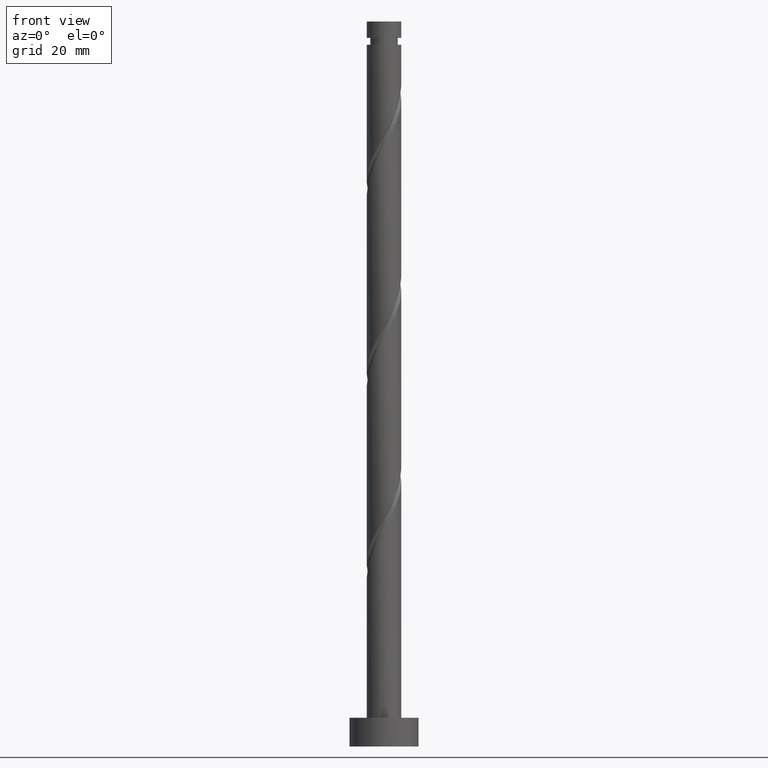
[diagram: clean part render]
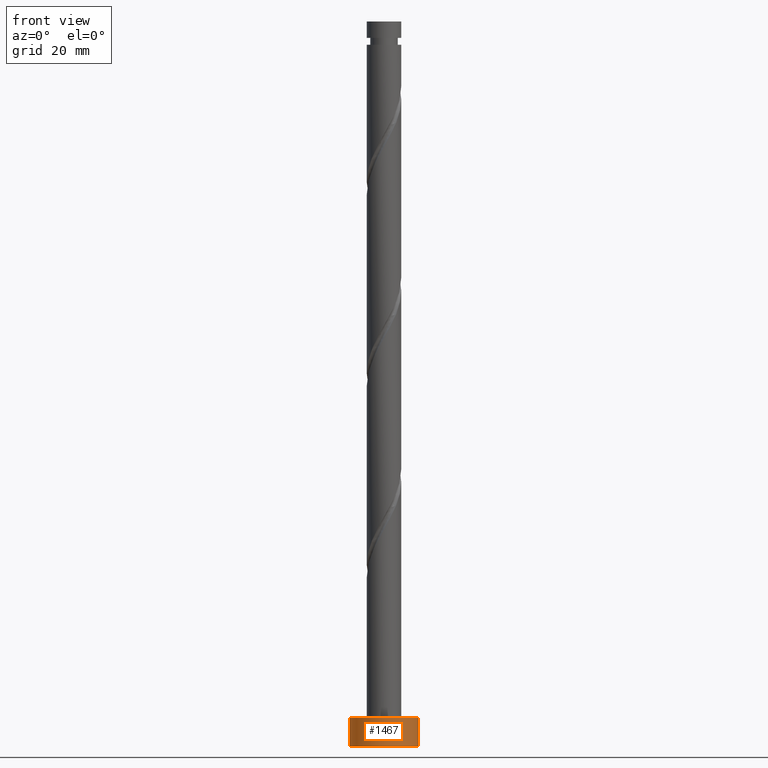
[diagram: same view with one face highlighted and labeled with its STEP entity id]
A machine part, front view. The second image highlights one B-rep face of the part: STEP entity #1467.
In plain terms, the highlighted cylindrical surface (edge-blend (fillet) strip) has radius 6 mm, axis along (-0, -0, -1).
Its self-contained STEP definition (entity closure, byte-faithful):
#121 = DIRECTION ( 'NONE',  ( -1.000000000000000000, 0.000000000000000000, 0.000000000000000000 ) ) ;
#201 = CARTESIAN_POINT ( 'NONE',  ( 0.000000000000000000, 0.000000000000000000, 0.000000000000000000 ) ) ;
#206 = LINE ( 'NONE', #877, #1025 ) ;
#226 = ORIENTED_EDGE ( 'NONE', *, *, #834, .F. ) ;
#262 = EDGE_CURVE ( 'NONE', #1221, #628, #648, .T. ) ;
#280 = EDGE_LOOP ( 'NONE', ( #764, #226, #473, #1439 ) ) ;
#315 = CIRCLE ( 'NONE', #1594, 6.000000000000000888 ) ;
#318 = AXIS2_PLACEMENT_3D ( 'NONE', #1020, #477, #994 ) ;
#355 = EDGE_CURVE ( 'NONE', #628, #626, #315, .T. ) ;
#446 = CARTESIAN_POINT ( 'NONE',  ( -6.000000000000000888, 0.000000000000000000, 0.000000000000000000 ) ) ;
#473 = ORIENTED_EDGE ( 'NONE', *, *, #262, .T. ) ;
#477 = DIRECTION ( 'NONE',  ( 0.000000000000000000, 0.000000000000000000, 1.000000000000000000 ) ) ;
#518 = DIRECTION ( 'NONE',  ( -0.000000000000000000, -0.000000000000000000, -1.000000000000000000 ) ) ;
#620 = CARTESIAN_POINT ( 'NONE',  ( -6.000000000000000888, 0.000000000000000000, 5.000000000000000000 ) ) ;
#626 = VERTEX_POINT ( 'NONE', #1360 ) ;
#628 = VERTEX_POINT ( 'NONE', #446 ) ;
#648 = LINE ( 'NONE', #1728, #682 ) ;
#655 = CYLINDRICAL_SURFACE ( 'NONE', #1198, 6.000000000000000888 ) ;
#682 = VECTOR ( 'NONE', #518, 1000.000000000000000 ) ;
#734 = CARTESIAN_POINT ( 'NONE',  ( 6.000000000000000888, 7.347880794884120722E-16, 5.000000000000000000 ) ) ;
#764 = ORIENTED_EDGE ( 'NONE', *, *, #887, .F. ) ;
#834 = EDGE_CURVE ( 'NONE', #1221, #1307, #1081, .T. ) ;
#877 = CARTESIAN_POINT ( 'NONE',  ( 6.000000000000000888, 7.347880794884120722E-16, 5.000000000000000000 ) ) ;
#887 = EDGE_CURVE ( 'NONE', #1307, #626, #206, .T. ) ;
#888 = DIRECTION ( 'NONE',  ( 0.000000000000000000, 0.000000000000000000, 1.000000000000000000 ) ) ;
#994 = DIRECTION ( 'NONE',  ( 1.000000000000000000, 0.000000000000000000, 0.000000000000000000 ) ) ;
#1020 = CARTESIAN_POINT ( 'NONE',  ( 0.000000000000000000, 0.000000000000000000, 5.000000000000000000 ) ) ;
#1025 = VECTOR ( 'NONE', #1160, 1000.000000000000000 ) ;
#1081 = CIRCLE ( 'NONE', #318, 6.000000000000000888 ) ;
#1160 = DIRECTION ( 'NONE',  ( -0.000000000000000000, -0.000000000000000000, -1.000000000000000000 ) ) ;
#1162 = DIRECTION ( 'NONE',  ( 1.000000000000000000, 0.000000000000000000, 0.000000000000000000 ) ) ;
#1198 = AXIS2_PLACEMENT_3D ( 'NONE', #1317, #1463, #121 ) ;
#1221 = VERTEX_POINT ( 'NONE', #620 ) ;
#1307 = VERTEX_POINT ( 'NONE', #734 ) ;
#1317 = CARTESIAN_POINT ( 'NONE',  ( 0.000000000000000000, 0.000000000000000000, 5.000000000000000000 ) ) ;
#1360 = CARTESIAN_POINT ( 'NONE',  ( 6.000000000000000888, 7.347880794884120722E-16, 0.000000000000000000 ) ) ;
#1439 = ORIENTED_EDGE ( 'NONE', *, *, #355, .T. ) ;
#1463 = DIRECTION ( 'NONE',  ( -0.000000000000000000, -0.000000000000000000, -1.000000000000000000 ) ) ;
#1467 = ADVANCED_FACE ( 'NONE', ( #1736 ), #655, .T. ) ;
#1594 = AXIS2_PLACEMENT_3D ( 'NONE', #201, #888, #1162 ) ;
#1728 = CARTESIAN_POINT ( 'NONE',  ( -6.000000000000000888, 0.000000000000000000, 5.000000000000000000 ) ) ;
#1736 = FACE_OUTER_BOUND ( 'NONE', #280, .T. ) ;